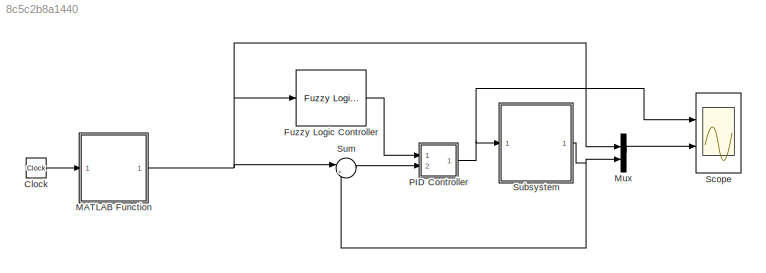
MODEL slx_8c5c2b8a1440
KIND model
CONFIG AbsTol = auto
CONFIG EnableMultiTasking = off
CONFIG FixedStep = 0.1
CONFIG MaxStep = auto
CONFIG MinStep = auto
CONFIG RelTol = 1e-3
CONFIG SampleTimeConstraint = Unconstrained
CONFIG Solver = ode5
CONFIG SolverName = ode5
CONFIG StartTime = 0.0
CONFIG StopTime = 60
BLOCK [Clock] Clock
  Decimation = 60
BLOCK [Reference] Fuzzy Logic Controller  REF=fuzblock/Fuzzy Logic   (lib defined in mdl_858b3b3e7478)
Controller
  Ports = [1, 1]
  SourceBlock = fuzblock/Fuzzy Logic \nController
  SourceProductBaseCode = FL
  SourceProductName = Fuzzy Logic Toolbox
  SourceType = Fuzzy Inference System
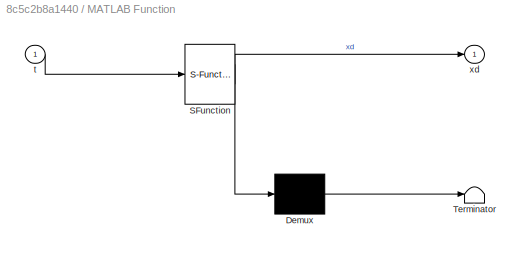
BLOCK [SubSystem] MATLAB Function
  ErrorFcn = Stateflow.Translate.translate
  PermitHierarchicalResolution = ExplicitOnly
  Ports = [1, 1]
  RequestExecContextInheritance = off
  SFBlockType = MATLAB Function
  TreatAsAtomicUnit = on
  Variant = off
BLOCK [Demux] MATLAB Function/ Demux 
  Outputs = 1
  Ports = [1, 1]
BLOCK [S-Function] MATLAB Function/ SFunction 
  EnableBusSupport = on
  FunctionName = sf_sfun
  PortCounts = [1 2]
  Ports = [1, 2]
  SFcnIsStateOwnerBlock = off
  SFunctionDeploymentMode = off
  Tag = Stateflow S-Function btvn06 2
BLOCK [Terminator] MATLAB Function/ Terminator 
BLOCK [Inport] MATLAB Function/t
  IconDisplay = Port number
BLOCK [Outport] MATLAB Function/xd
  IconDisplay = Port number
BLOCK [Mux] Mux
  DisplayOption = bar
  Inputs = 2
  Ports = [2, 1]
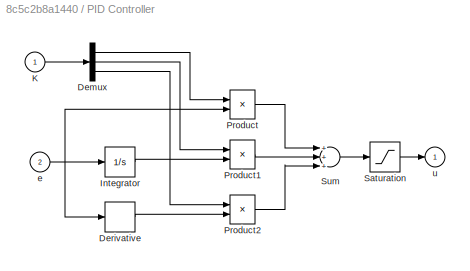
BLOCK [SubSystem] PID Controller
  AncestorBlock = simulink_extras/Additional\nLinear/PID Controller
  Ports = [2, 1]
  RequestExecContextInheritance = off
  Variant = off
BLOCK [Demux] PID Controller/Demux
  Outputs = 3
  Ports = [1, 3]
BLOCK [Derivative] PID Controller/Derivative
BLOCK [Integrator] PID Controller/Integrator
  Ports = [1, 1]
BLOCK [Inport] PID Controller/K
  IconDisplay = Port number
BLOCK [Product] PID Controller/Product
  InputSameDT = off
  Ports = [2, 1]
  RndMeth = Floor
BLOCK [Product] PID Controller/Product1
  InputSameDT = off
  Ports = [2, 1]
  RndMeth = Floor
BLOCK [Product] PID Controller/Product2
  InputSameDT = off
  Ports = [2, 1]
  RndMeth = Floor
BLOCK [Saturate] PID Controller/Saturation
  InputPortMap = u0
  LowerLimit = -200
  Ports = [1, 1]
  UpperLimit = 200
BLOCK [Sum] PID Controller/Sum
  Inputs = +++
  Ports = [3, 1]
BLOCK [Inport] PID Controller/e
  IconDisplay = Port number
  Port = 2
BLOCK [Outport] PID Controller/u
  IconDisplay = Port number
  InitialOutput = 0
BLOCK [Scope] Scope
  NumInputPorts = 2
  Ports = [2]
  ScopeSpecificationString = Simulink.scopes.TimeScopeBlockCfg('CurrentConfiguration', extmgr.ConfigurationSet(extmgr.Configuration('Core','General UI',true,'FigureColor',[1 1 1]),extmgr.Configuration('Core','Source UI',true),extmgr.Configuration('Sources','WiredSimulink',true),extmgr.Configuration('Visuals','Time Domain',true,'SerializedDisplays',{struct('MinYLimReal','-66.00955','MaxYLimReal','103.0554','YLabelReal','','Min...<+2570ch>
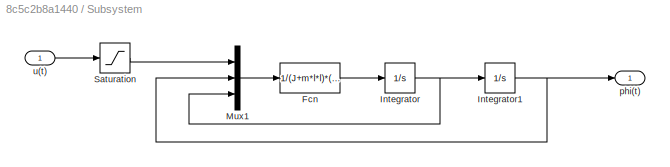
BLOCK [SubSystem] Subsystem
  Ports = [1, 1]
  RequestExecContextInheritance = off
  Variant = off
BLOCK [Fcn] Subsystem/Fcn
  Expr = 1/(J+m*l*l)*(u(1)-B*u(3)-(m*l+H*lc)*g*sin(u(2)))
BLOCK [Integrator] Subsystem/Integrator
  LimitOutput = on
  LowerSaturationLimit = -2*pi
  Ports = [1, 1]
  UpperSaturationLimit = 2*pi
BLOCK [Integrator] Subsystem/Integrator1
  LimitOutput = on
  LowerSaturationLimit = -2*pi
  Ports = [1, 1]
  UpperSaturationLimit = 2*pi
BLOCK [Mux] Subsystem/Mux1
  DisplayOption = bar
  Inputs = 3
  Ports = [3, 1]
BLOCK [Saturate] Subsystem/Saturation
  InputPortMap = u0
  LowerLimit = -200
  Ports = [1, 1]
  UpperLimit = 200
BLOCK [Outport] Subsystem/phi(t)
  IconDisplay = Port number
BLOCK [Inport] Subsystem/u(t)
  IconDisplay = Port number
BLOCK [Sum] Sum
  IconShape = round
  InputSameDT = off
  Inputs = |+-
  OutDataTypeStr = Inherit: Inherit via internal rule
  Ports = [2, 1]
LINE Clock:1 -> MATLAB Function:1
LINE Fuzzy Logic Controller:1 -> PID Controller:1
NET MATLAB Function:1 -> Fuzzy Logic Controller:1, Mux:1, Sum:1
LINE Mux:1 -> Scope:2
NET PID Controller:1 -> Scope:1, Subsystem:1
LINE Subsystem/Fcn:1 -> Subsystem/Integrator:1
NET Subsystem/Integrator1:1 -> Subsystem/Mux1:2, Subsystem/phi(t):1
NET Subsystem/Integrator:1 -> Subsystem/Integrator1:1, Subsystem/Mux1:3
LINE Subsystem/Mux1:1 -> Subsystem/Fcn:1
LINE Subsystem/Saturation:1 -> Subsystem/Mux1:1
LINE Subsystem/u(t):1 -> Subsystem/Saturation:1
NET Subsystem:1 -> Mux:2, Sum:2
LINE Sum:1 -> PID Controller:2
note: NET lines group one-source signal fan-out (src -> all destinations, sorted); 1:1 wires keep LINE
CHART MATLAB Function states=1 transitions=1
  STATE_LABEL 'eML_blk_kernel()'
  STATE_LABEL 'SCRIPT:\nfunction xd = fcn(t)\nif (0<=t) && (t<10)  \n    xd = pi/2;\nelseif (10<=t) &&(t<20) \n    xd = pi/3;\nelseif (20<=t) &&(t<30)  \n    xd = pi;\nelseif (30<=t) &&(t<40)  \n    xd = 2*pi/3;\nelseif (40<=t) &&(t<50)  \n    xd = pi/6;\nelseif (50<=t) &&(t<=60)  \n    xd = 5*pi/6;\nelse xd = 0;\nend\nend\n\n'
